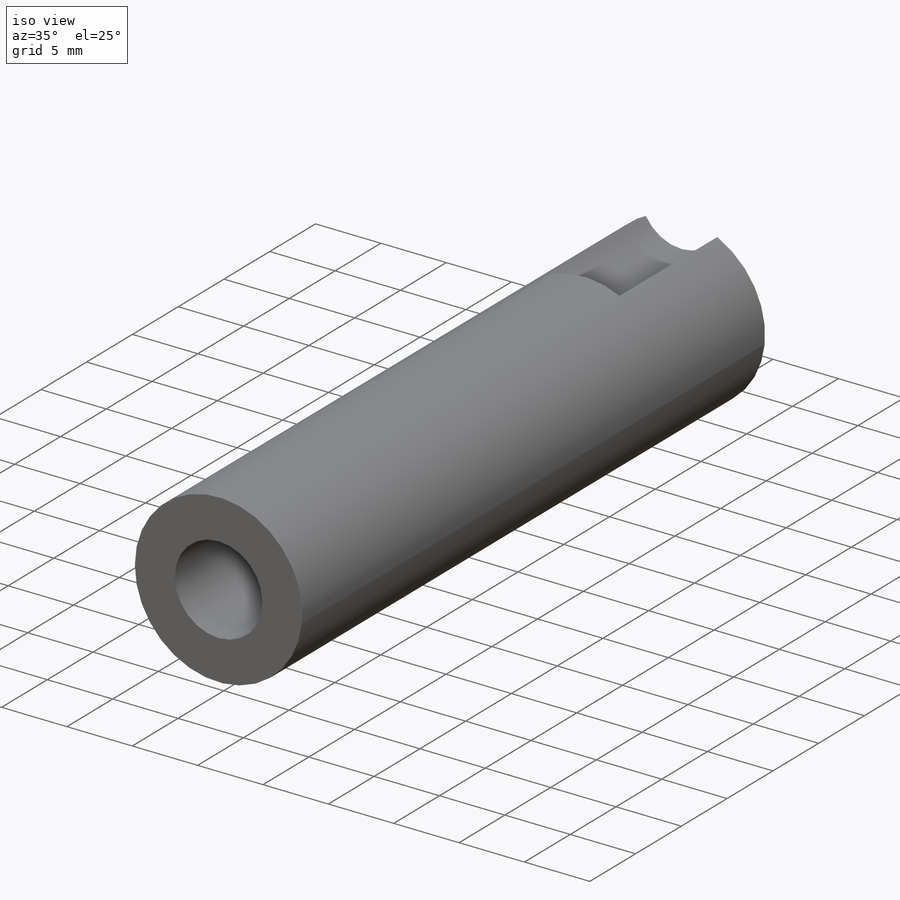
[diagram: iso view]
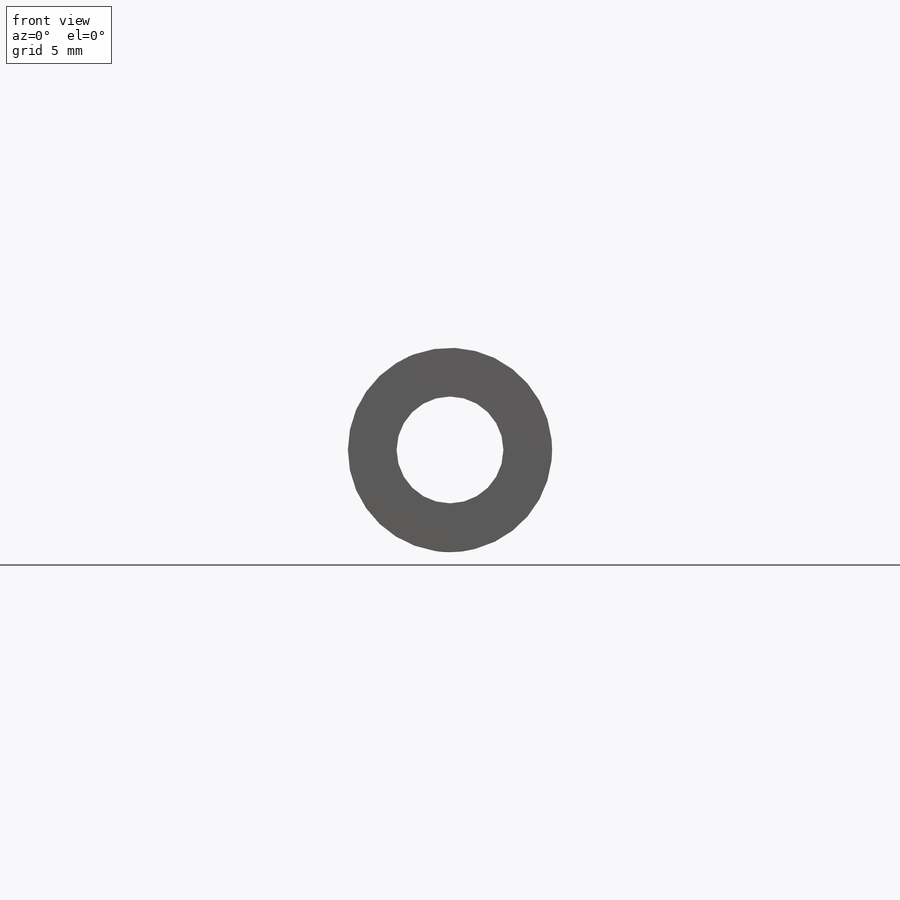
[diagram: front view]
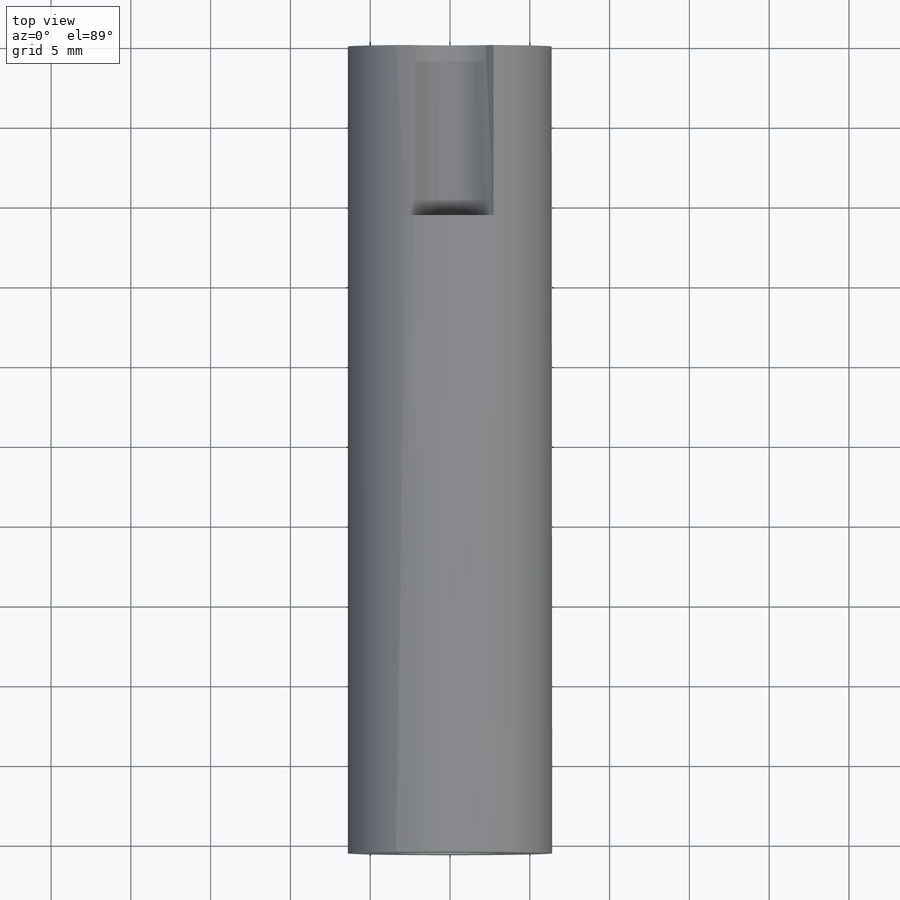
[diagram: top view]
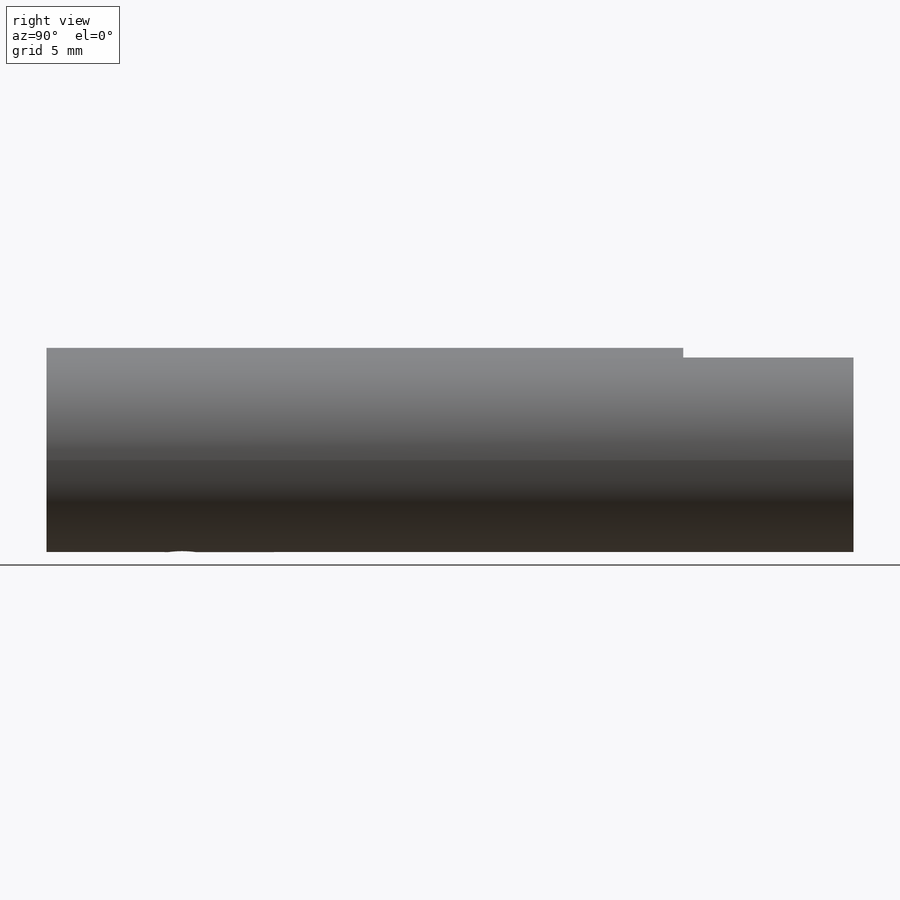
[diagram: right view]
SOLIDWORKS PART (.sldprt)
format: sldprt  version: not decoded by parser v0  size: 242,688 bytes
history: native  units: mm
features: sketch x11, cut_extrude x5, extrude x3, material x1 (+16 scaffold rows collapsed)
feature tree (36):
  scaffold x16  (default folders/planes/origin — collapsed)
  material  "Material <not specified>"
  sketch  "Sketch1"  dims[D1=25.0698mm]
  extrude  "Boss-Extrude1"  Depth=6.4389mm
  sketch  "Sketch2"  dims[D1=19.6596mm D2=360.0deg]
  extrude  "Boss-Extrude2"  Depth=4.0386mm
  sketch  "Sketch3"  dims[D1=12.8016mm]
  extrude  "Boss-Extrude3"  Depth=44.1325mm
  sketch  "Sketch4"  dims[D1=6.35mm D2=~7.41045mm]
  cut_extrude  "Cut-Extrude1"  Depth=10.668mm
  sketch  "Sketch5"  dims[D1=5.334mm]
  cut_extrude  "Cut-Extrude2"  [1 undecoded]
  sketch  "Sketch6"  dims[D1=6.6929mm]
  cut_extrude  "Cut-Extrude3"  [1 undecoded]
  sketch  "Sketch7"  dims[D1=12.8016mm D2=25.0698mm]
  cut_extrude  "Cut-Extrude4"  [1 undecoded]
  sketch  "Sketch9"
  sketch  "Sketch10"
  sketch  "3DSketch1"
  sketch  "Sketch11"
  cut_extrude  "Cut-Extrude5"  Depth=5.08mm
decode coverage: 12 of 19 modeling features carry decoded parameters
note: ~ marks probable driven/reference dimensions
note: 3 parameter values undecoded
summary: no parameter record found for 3 features
note: suppression state not decoded; provenance and decode notes live in map.json
